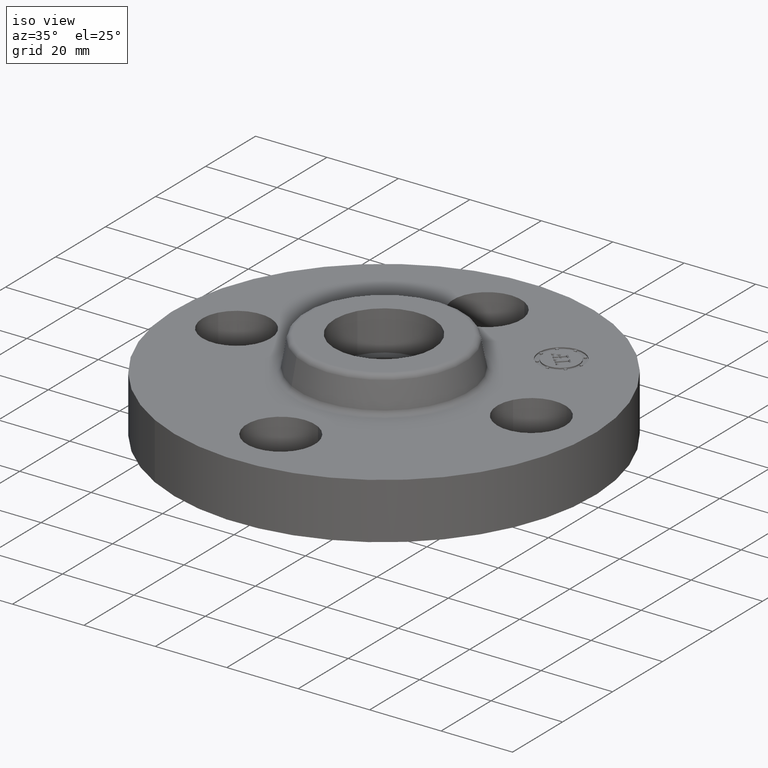
[diagram: clean part render]
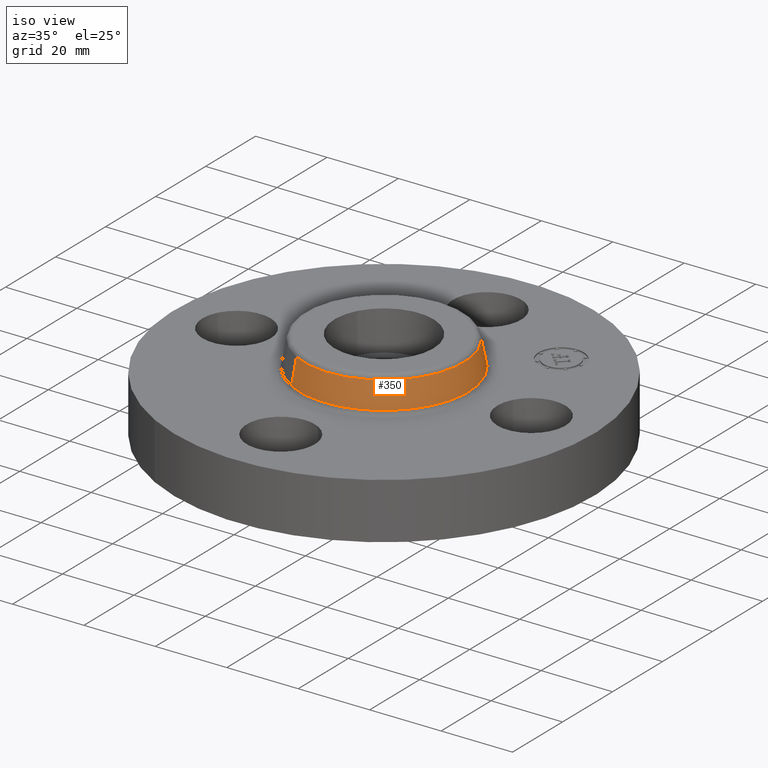
[diagram: same view with one face highlighted and labeled with its STEP entity id]
A machine part, iso view. The second image highlights one B-rep face of the part: STEP entity #350.
In plain terms, the highlighted conical surface has half-angle 10 deg.
Its self-contained STEP definition (entity closure, byte-faithful):
#286=AXIS2_PLACEMENT_3D('Circle Axis2P3D',#284,#285,$) ;
#323=AXIS2_PLACEMENT_3D('Cone Axis2P3D',#320,#321,#322) ;
#334=AXIS2_PLACEMENT_3D('Circle Axis2P3D',#332,#333,$) ;
#281=CARTESIAN_POINT('Vertex',(0.446468634602,0.817255353769,0.669581109343)) ;
#284=CARTESIAN_POINT('Axis2P3D Location',(0.,0.,0.669581109343)) ;
#288=CARTESIAN_POINT('Vertex',(-0.446468634602,-0.817255353769,0.669581109343)) ;
#320=CARTESIAN_POINT('Axis2P3D Location',(0.,0.,0.950418890664)) ;
#325=CARTESIAN_POINT('Line Origine',(0.434598231327,0.795526726323,0.810000000003)) ;
#329=CARTESIAN_POINT('Vertex',(0.422727828052,0.773798098876,0.950418890664)) ;
#332=CARTESIAN_POINT('Axis2P3D Location',(0.,0.,0.950418890664)) ;
#336=CARTESIAN_POINT('Vertex',(-0.422727828052,-0.773798098876,0.950418890664)) ;
#339=CARTESIAN_POINT('Line Origine',(-0.434598231327,-0.795526726323,0.810000000003)) ;
#285=DIRECTION('Axis2P3D Direction',(0.,0.,-0.0393700787402)) ;
#321=DIRECTION('Axis2P3D Direction',(0.,0.,-0.0393700787402)) ;
#322=DIRECTION('Axis2P3D XDirection',(-0.0188750212049,-0.0345504945626,0.)) ;
#326=DIRECTION('Vector Direction',(0.00327761303565,0.00599963041829,-0.03877195878)) ;
#333=DIRECTION('Axis2P3D Direction',(0.,0.,-0.0393700787402)) ;
#340=DIRECTION('Vector Direction',(-0.00327761303565,-0.00599963041829,-0.03877195878)) ;
#327=VECTOR('Line Direction',#326,0.0393700787402) ;
#341=VECTOR('Line Direction',#340,0.0393700787402) ;
#345=ORIENTED_EDGE('',*,*,#290,.F.) ;
#346=ORIENTED_EDGE('',*,*,#331,.T.) ;
#347=ORIENTED_EDGE('',*,*,#338,.T.) ;
#348=ORIENTED_EDGE('',*,*,#343,.F.) ;
#350=ADVANCED_FACE('PartBody',(#349),#324,.T.) ;
#287=CIRCLE('generated circle',#286,0.931257512694) ;
#335=CIRCLE('generated circle',#334,0.881738234644) ;
#324=CONICAL_SURFACE('Cone',#323,0.881738234644,0.174532925199) ;
#290=EDGE_CURVE('',#282,#289,#287,.T.) ;
#331=EDGE_CURVE('',#282,#330,#328,.F.) ;
#338=EDGE_CURVE('',#330,#337,#335,.T.) ;
#343=EDGE_CURVE('',#289,#337,#342,.F.) ;
#344=EDGE_LOOP('',(#345,#346,#347,#348)) ;
#349=FACE_OUTER_BOUND('',#344,.T.) ;
#328=LINE('Line',#325,#327) ;
#342=LINE('Line',#339,#341) ;
#282=VERTEX_POINT('',#281) ;
#289=VERTEX_POINT('',#288) ;
#330=VERTEX_POINT('',#329) ;
#337=VERTEX_POINT('',#336) ;